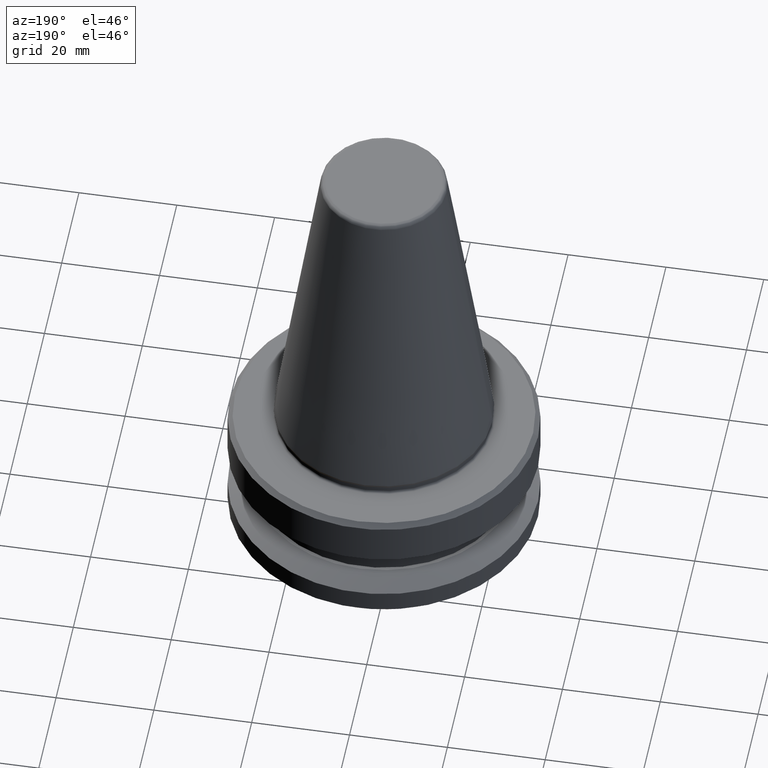
[diagram: clean part render]
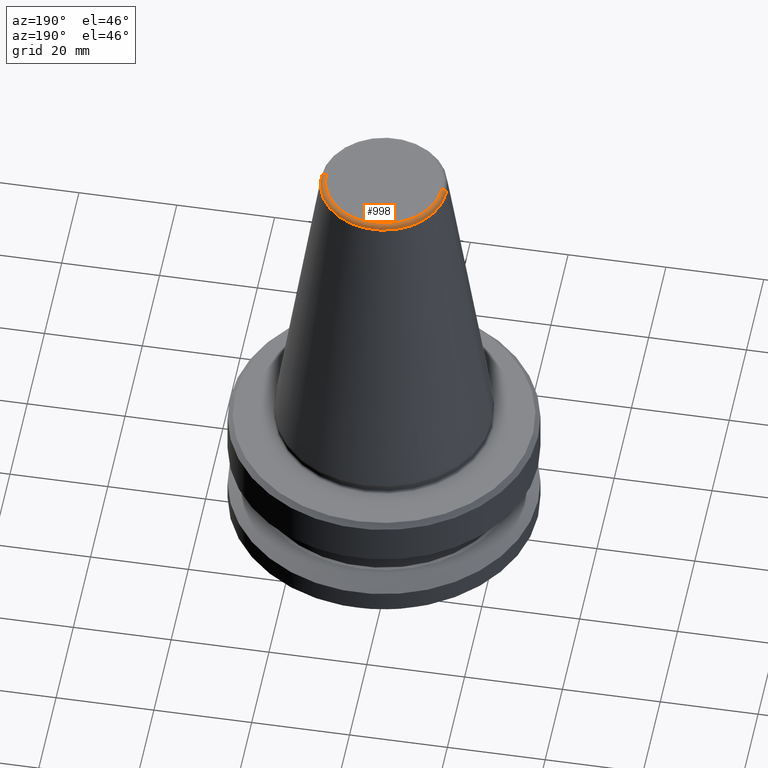
[diagram: same view with one face highlighted and labeled with its STEP entity id]
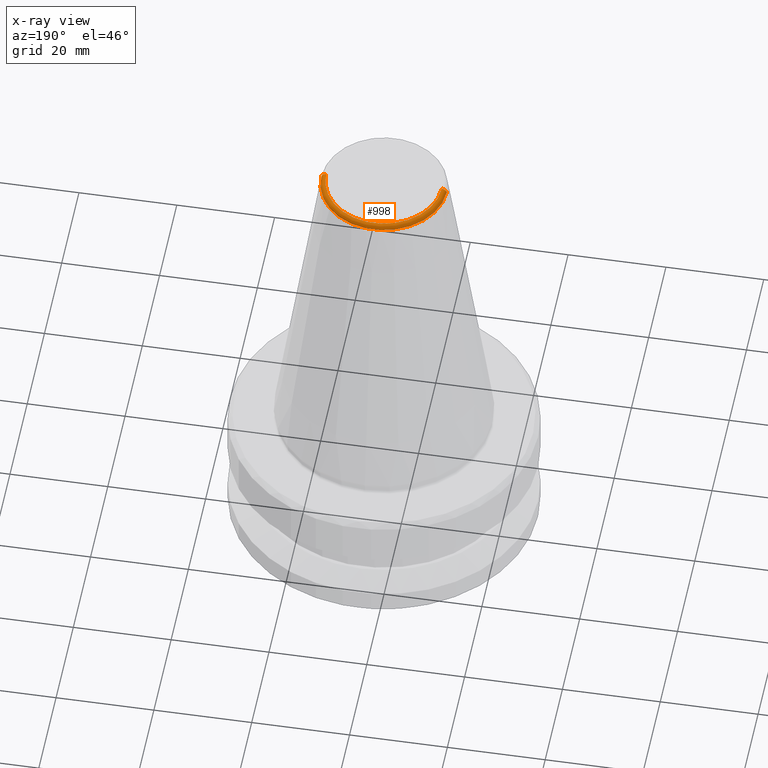
[diagram: x-ray of the same camera — body ghosted, the highlighted face saturated]
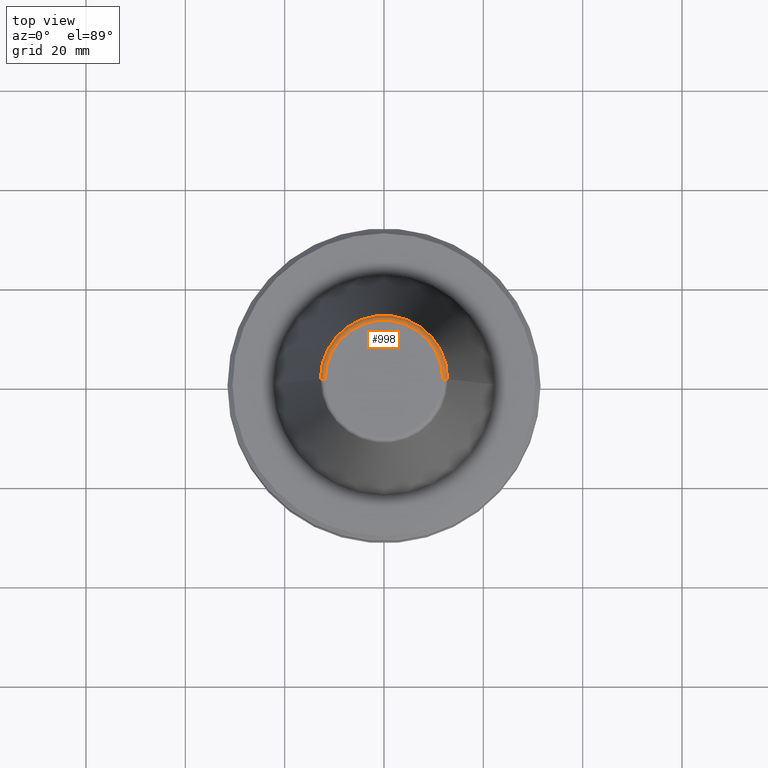
[diagram: same view with one face highlighted and labeled with its STEP entity id]
A machine part, auxiliary view. The second image highlights one B-rep face of the part: STEP entity #998.
The next image is the same camera in x-ray: the body ghosted, the highlighted face saturated — about 0% of this face is hidden behind the body in this view.
A second angle (top view) of the same face is appended — the face is thin or edge-on in the first view.
In plain terms, the highlighted toroidal blend (fillet) surface has major radius 11.8227 mm and minor (blend) radius 1 mm.
Its self-contained STEP definition (entity closure, byte-faithful):
#11 = CARTESIAN_POINT ( 'NONE',  ( 0.0000000000000000000, 0.0000000000000000000, -4.440892098500626200E-013 ) ) ;
#39 = AXIS2_PLACEMENT_3D ( 'NONE', #11, #570, #89 ) ;
#67 = AXIS2_PLACEMENT_3D ( 'NONE', #333, #889, #410 ) ;
#89 = DIRECTION ( 'NONE',  ( 1.000000000000000000, 0.0000000000000000000, 0.0000000000000000000 ) ) ;
#97 = CARTESIAN_POINT ( 'NONE',  ( 11.82266927716813000, 0.0000000000000000000, -4.440892098500626200E-013 ) ) ;
#112 = CARTESIAN_POINT ( 'NONE',  ( 0.0000000000000000000, 0.0000000000000000000, -0.8556918111122247000 ) ) ;
#140 = ORIENTED_EDGE ( 'NONE', *, *, #556, .F. ) ;
#176 = AXIS2_PLACEMENT_3D ( 'NONE', #720, #564, #980 ) ;
#198 = CARTESIAN_POINT ( 'NONE',  ( -12.81220206925736900, 0.0000000000000000000, -0.8556918111122247000 ) ) ;
#199 = DIRECTION ( 'NONE',  ( 1.000000000000000000, 0.0000000000000000000, 0.0000000000000000000 ) ) ;
#250 = ORIENTED_EDGE ( 'NONE', *, *, #484, .T. ) ;
#333 = CARTESIAN_POINT ( 'NONE',  ( -11.82266927716813000, 1.447859408766170200E-015, -1.000000000000334000 ) ) ;
#350 = DIRECTION ( 'NONE',  ( 0.0000000000000000000, -1.000000000000000000, 0.0000000000000000000 ) ) ;
#410 = DIRECTION ( 'NONE',  ( -1.000000000000000000, 1.224646799147353000E-016, 0.0000000000000000000 ) ) ;
#484 = EDGE_CURVE ( 'NONE', #592, #767, #525, .T. ) ;
#496 = EDGE_CURVE ( 'NONE', #758, #767, #760, .T. ) ;
#518 = CIRCLE ( 'NONE', #633, 12.81220206925736900 ) ;
#525 = CIRCLE ( 'NONE', #67, 0.9999999999999696900 ) ;
#556 = EDGE_CURVE ( 'NONE', #1014, #758, #637, .T. ) ;
#564 = DIRECTION ( 'NONE',  ( -0.0000000000000000000, -0.0000000000000000000, 1.000000000000000000 ) ) ;
#570 = DIRECTION ( 'NONE',  ( -0.0000000000000000000, -0.0000000000000000000, 1.000000000000000000 ) ) ;
#578 = CARTESIAN_POINT ( 'NONE',  ( 12.81220206925736900, 2.145409868259749100E-015, -0.8556918111122247000 ) ) ;
#581 = EDGE_LOOP ( 'NONE', ( #801, #250, #711, #140 ) ) ;
#592 = VERTEX_POINT ( 'NONE', #198 ) ;
#613 = AXIS2_PLACEMENT_3D ( 'NONE', #816, #350, #905 ) ;
#633 = AXIS2_PLACEMENT_3D ( 'NONE', #112, #665, #199 ) ;
#637 = CIRCLE ( 'NONE', #613, 0.9999999999999696900 ) ;
#665 = DIRECTION ( 'NONE',  ( -0.0000000000000000000, -0.0000000000000000000, 1.000000000000000000 ) ) ;
#669 = TOROIDAL_SURFACE ( 'NONE', #176, 11.82266927716813000, 0.9999999999999696900 ) ;
#711 = ORIENTED_EDGE ( 'NONE', *, *, #496, .F. ) ;
#720 = CARTESIAN_POINT ( 'NONE',  ( 0.0000000000000000000, 0.0000000000000000000, -1.000000000000334000 ) ) ;
#758 = VERTEX_POINT ( 'NONE', #97 ) ;
#760 = CIRCLE ( 'NONE', #39, 11.82266927716813000 ) ;
#767 = VERTEX_POINT ( 'NONE', #809 ) ;
#801 = ORIENTED_EDGE ( 'NONE', *, *, #901, .T. ) ;
#809 = CARTESIAN_POINT ( 'NONE',  ( -11.82266927716813000, 1.508450817090336800E-015, -4.440892098500626200E-013 ) ) ;
#816 = CARTESIAN_POINT ( 'NONE',  ( 11.82266927716813000, 0.0000000000000000000, -1.000000000000334000 ) ) ;
#881 = FACE_OUTER_BOUND ( 'NONE', #581, .T. ) ;
#889 = DIRECTION ( 'NONE',  ( 1.224646799147353200E-016, 1.000000000000000000, 0.0000000000000000000 ) ) ;
#901 = EDGE_CURVE ( 'NONE', #1014, #592, #518, .T. ) ;
#905 = DIRECTION ( 'NONE',  ( 0.0000000000000000000, 0.0000000000000000000, -1.000000000000000000 ) ) ;
#980 = DIRECTION ( 'NONE',  ( 1.000000000000000000, 0.0000000000000000000, 0.0000000000000000000 ) ) ;
#998 = ADVANCED_FACE ( 'NONE', ( #881 ), #669, .T. ) ;
#1014 = VERTEX_POINT ( 'NONE', #578 ) ;